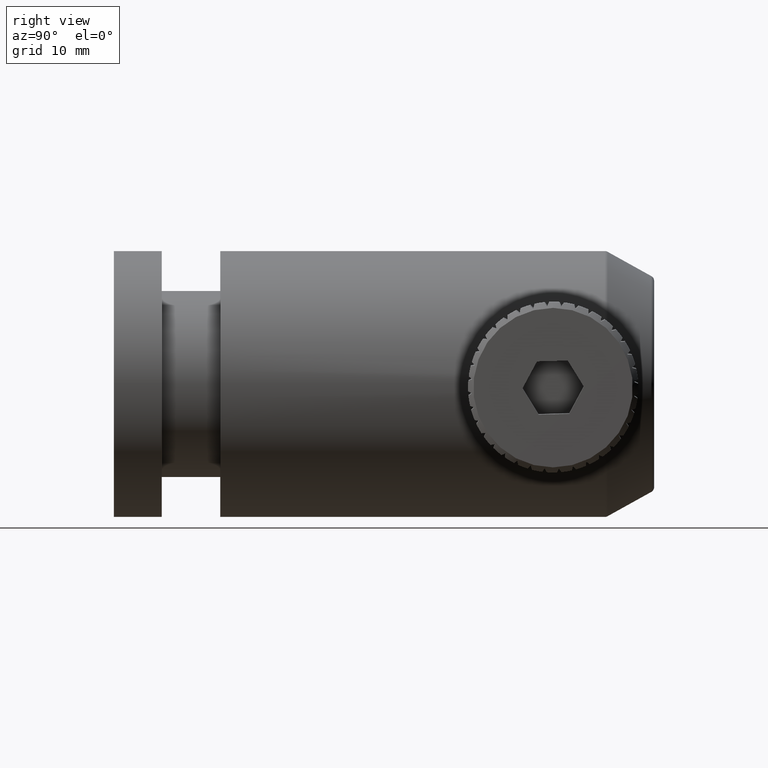
[diagram: clean part render]
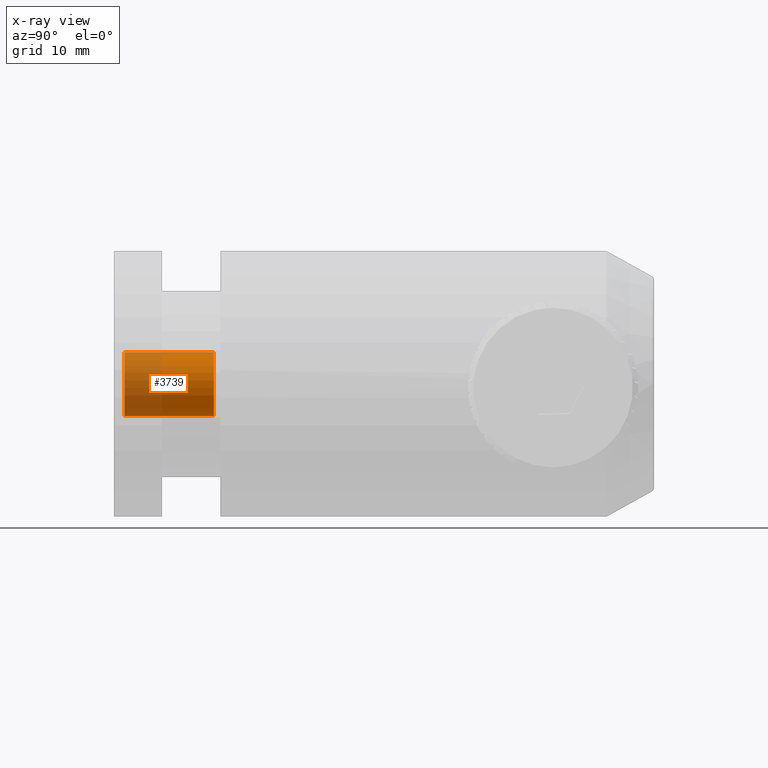
[diagram: x-ray — body ghosted, one internal face saturated and labeled with its STEP entity id]
A machine part, right view, then the same camera in x-ray: the body is ghosted and one INTERNAL B-rep face — a face not visible from any outside direction — is saturated and labeled: STEP entity #3739.
In plain terms, the highlighted cylindrical surface (edge-blend (fillet) strip) has radius 3 mm, axis along (0, 1, 0).
Its self-contained STEP definition (entity closure, byte-faithful):
#179 = DIRECTION ( 'NONE',  ( 0.0000000000000000000, 1.000000000000000000, 0.0000000000000000000 ) ) ;
#459 = CARTESIAN_POINT ( 'NONE',  ( -5.265086014861048500, -6.085008935806527600, 1.984779247520654000 ) ) ;
#597 = CARTESIAN_POINT ( 'NONE',  ( -5.265086014861048500, -5.585008935806523100, -1.015220752479344400 ) ) ;
#717 = EDGE_LOOP ( 'NONE', ( #1314, #4255, #804, #1130 ) ) ;
#804 = ORIENTED_EDGE ( 'NONE', *, *, #1684, .T. ) ;
#862 = CARTESIAN_POINT ( 'NONE',  ( -5.265086014861049400, -6.085008935806527600, 4.984779247520652500 ) ) ;
#949 = VECTOR ( 'NONE', #1448, 1000.000000000000000 ) ;
#968 = CYLINDRICAL_SURFACE ( 'NONE', #5172, 2.999999999999998200 ) ;
#1049 = CARTESIAN_POINT ( 'NONE',  ( -5.265086014861048500, -14.48500893587834100, 1.984779247520654000 ) ) ;
#1130 = ORIENTED_EDGE ( 'NONE', *, *, #3255, .F. ) ;
#1314 = ORIENTED_EDGE ( 'NONE', *, *, #1899, .F. ) ;
#1335 = VERTEX_POINT ( 'NONE', #4346 ) ;
#1448 = DIRECTION ( 'NONE',  ( 0.0000000000000000000, 1.000000000000000000, 0.0000000000000000000 ) ) ;
#1480 = CARTESIAN_POINT ( 'NONE',  ( -5.265086014861048500, -6.085008935806527600, -1.015220752479344400 ) ) ;
#1532 = CARTESIAN_POINT ( 'NONE',  ( -5.265086014861048500, -5.585008935806523100, 4.984779247520652500 ) ) ;
#1564 = EDGE_CURVE ( 'NONE', #1335, #2480, #2936, .T. ) ;
#1612 = CARTESIAN_POINT ( 'NONE',  ( -5.265086014861048500, -14.48500893587834100, 4.984779247533803700 ) ) ;
#1654 = AXIS2_PLACEMENT_3D ( 'NONE', #459, #1745, #2154 ) ;
#1684 = EDGE_CURVE ( 'NONE', #2480, #3552, #2862, .T. ) ;
#1745 = DIRECTION ( 'NONE',  ( -0.0000000000000000000, -1.000000000000000000, -0.0000000000000000000 ) ) ;
#1899 = EDGE_CURVE ( 'NONE', #1335, #3829, #4683, .T. ) ;
#1959 = DIRECTION ( 'NONE',  ( 0.0000000000000000000, 1.000000000000000000, 0.0000000000000000000 ) ) ;
#2154 = DIRECTION ( 'NONE',  ( 0.0000000000000000000, 0.0000000000000000000, 1.000000000000000000 ) ) ;
#2480 = VERTEX_POINT ( 'NONE', #1480 ) ;
#2862 = CIRCLE ( 'NONE', #1654, 2.999999999999998200 ) ;
#2936 = LINE ( 'NONE', #597, #949 ) ;
#2958 = VECTOR ( 'NONE', #1959, 1000.000000000000000 ) ;
#3255 = EDGE_CURVE ( 'NONE', #3829, #3552, #4125, .T. ) ;
#3257 = DIRECTION ( 'NONE',  ( -0.0000000000000000000, -1.000000000000000000, -0.0000000000000000000 ) ) ;
#3552 = VERTEX_POINT ( 'NONE', #862 ) ;
#3739 = ADVANCED_FACE ( 'NONE', ( #5136 ), #968, .T. ) ;
#3829 = VERTEX_POINT ( 'NONE', #1612 ) ;
#4061 = DIRECTION ( 'NONE',  ( 0.0000000000000000000, 0.0000000000000000000, 1.000000000000000000 ) ) ;
#4125 = LINE ( 'NONE', #1532, #2958 ) ;
#4144 = DIRECTION ( 'NONE',  ( 0.0000000000000000000, 0.0000000000000000000, -1.000000000000000000 ) ) ;
#4147 = CARTESIAN_POINT ( 'NONE',  ( -5.265086014861048500, -5.585008935806523100, 1.984779247520654000 ) ) ;
#4255 = ORIENTED_EDGE ( 'NONE', *, *, #1564, .T. ) ;
#4346 = CARTESIAN_POINT ( 'NONE',  ( -5.265086014861048500, -14.48500893587834100, -1.015220752492496100 ) ) ;
#4683 = CIRCLE ( 'NONE', #5650, 3.000000000013149900 ) ;
#5136 = FACE_OUTER_BOUND ( 'NONE', #717, .T. ) ;
#5172 = AXIS2_PLACEMENT_3D ( 'NONE', #4147, #179, #4061 ) ;
#5650 = AXIS2_PLACEMENT_3D ( 'NONE', #1049, #3257, #4144 ) ;